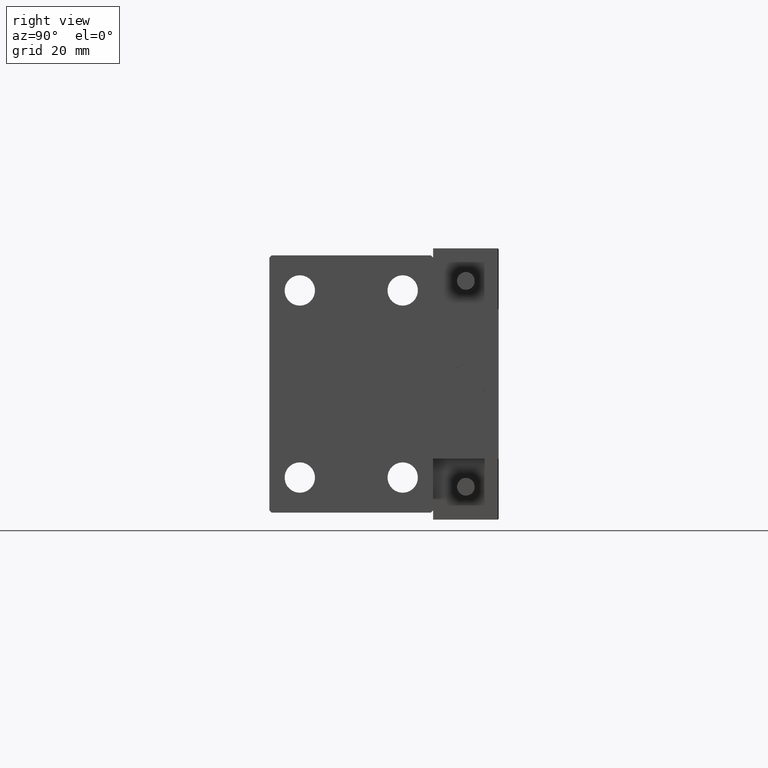
[diagram: clean part render]
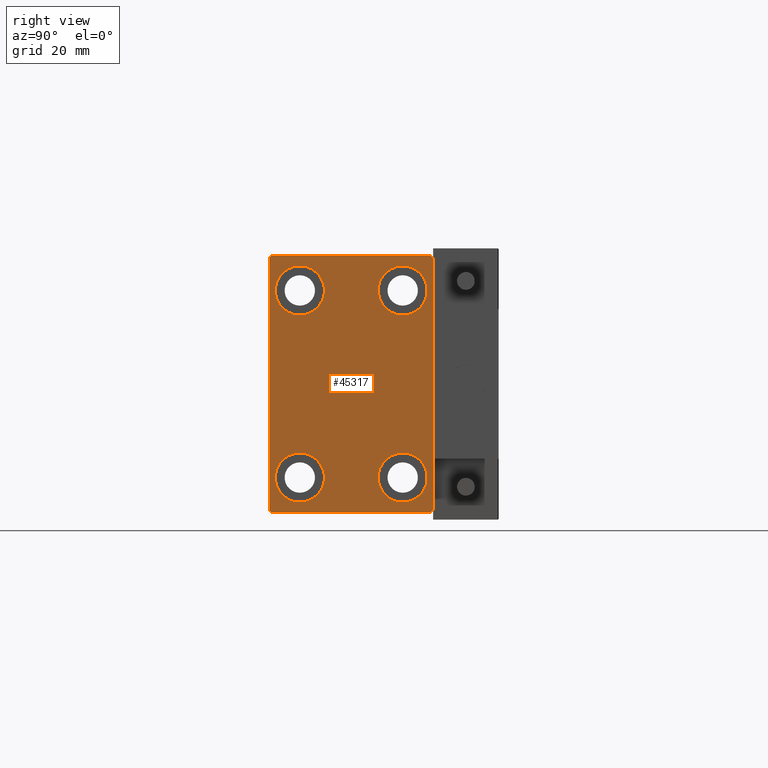
[diagram: same view with one face highlighted and labeled with its STEP entity id]
A machine part, right view. The second image highlights one B-rep face of the part: STEP entity #45317.
In plain terms, the highlighted planar face has unit normal (1, 0, 0).
Its self-contained STEP definition (entity closure, byte-faithful):
#112 = DIRECTION ( 'NONE',  ( -1.000000000000000000, -0.000000000000000000, -0.000000000000000000 ) ) ;
#150 = VERTEX_POINT ( 'NONE', #18050 ) ;
#1364 = CARTESIAN_POINT ( 'NONE',  ( 66.00000000000000000, 17.50000000000000711, -27.50000000000000355 ) ) ;
#2269 = EDGE_CURVE ( 'NONE', #38574, #42901, #26451, .T. ) ;
#2491 = CARTESIAN_POINT ( 'NONE',  ( 66.00000000000000000, 11.00000000000000355, 25.25000000000000000 ) ) ;
#2497 = EDGE_LOOP ( 'NONE', ( #46140, #2888 ) ) ;
#2888 = ORIENTED_EDGE ( 'NONE', *, *, #42793, .T. ) ;
#3155 = VERTEX_POINT ( 'NONE', #3814 ) ;
#3273 = VERTEX_POINT ( 'NONE', #49273 ) ;
#3325 = EDGE_CURVE ( 'NONE', #39649, #12728, #36680, .T. ) ;
#3625 = CARTESIAN_POINT ( 'NONE',  ( 66.00000000000000000, 0.000000000000000000, 0.000000000000000000 ) ) ;
#3814 = CARTESIAN_POINT ( 'NONE',  ( 66.00000000000000000, 17.00000000000001421, 27.50000000000000355 ) ) ;
#3883 = FACE_BOUND ( 'NONE', #30884, .T. ) ;
#5592 = DIRECTION ( 'NONE',  ( 0.000000000000000000, 0.000000000000000000, 1.000000000000000000 ) ) ;
#5760 = VERTEX_POINT ( 'NONE', #15296 ) ;
#5991 = EDGE_CURVE ( 'NONE', #20919, #16400, #20608, .T. ) ;
#6282 = AXIS2_PLACEMENT_3D ( 'NONE', #39024, #27718, #38278 ) ;
#6651 = VERTEX_POINT ( 'NONE', #21504 ) ;
#7688 = AXIS2_PLACEMENT_3D ( 'NONE', #27623, #112, #26622 ) ;
#7896 = AXIS2_PLACEMENT_3D ( 'NONE', #29472, #9433, #5592 ) ;
#7996 = DIRECTION ( 'NONE',  ( 1.000000000000000000, 0.000000000000000000, 0.000000000000000000 ) ) ;
#8001 = CARTESIAN_POINT ( 'NONE',  ( 66.00000000000000000, -11.00000000000000355, -25.25000000000000000 ) ) ;
#8032 = CARTESIAN_POINT ( 'NONE',  ( 66.00000000000000000, 17.50000000000000711, -26.99999999999998934 ) ) ;
#8577 = DIRECTION ( 'NONE',  ( 0.000000000000000000, -1.261617073437677752E-16, 1.000000000000000000 ) ) ;
#9433 = DIRECTION ( 'NONE',  ( -1.000000000000000000, -0.000000000000000000, -0.000000000000000000 ) ) ;
#10563 = VECTOR ( 'NONE', #33244, 1000.000000000000000 ) ;
#10834 = FACE_BOUND ( 'NONE', #14056, .T. ) ;
#11067 = ORIENTED_EDGE ( 'NONE', *, *, #44257, .T. ) ;
#11279 = ORIENTED_EDGE ( 'NONE', *, *, #25213, .T. ) ;
#11375 = DIRECTION ( 'NONE',  ( -1.000000000000000000, -0.000000000000000000, -0.000000000000000000 ) ) ;
#11998 = LINE ( 'NONE', #35633, #18428 ) ;
#12728 = VERTEX_POINT ( 'NONE', #42841 ) ;
#13719 = AXIS2_PLACEMENT_3D ( 'NONE', #35628, #43107, #34866 ) ;
#13969 = CARTESIAN_POINT ( 'NONE',  ( 66.00000000000000000, 11.00000000000000355, -20.00000000000000000 ) ) ;
#14056 = EDGE_LOOP ( 'NONE', ( #39855, #15547 ) ) ;
#14177 = ORIENTED_EDGE ( 'NONE', *, *, #36625, .T. ) ;
#14281 = CARTESIAN_POINT ( 'NONE',  ( 66.00000000000000000, 11.00000000000000355, -25.25000000000000000 ) ) ;
#14290 = VECTOR ( 'NONE', #19099, 1000.000000000000000 ) ;
#14469 = EDGE_CURVE ( 'NONE', #6651, #3273, #19444, .T. ) ;
#15140 = ORIENTED_EDGE ( 'NONE', *, *, #46545, .T. ) ;
#15249 = VECTOR ( 'NONE', #48548, 1000.000000000000000 ) ;
#15296 = CARTESIAN_POINT ( 'NONE',  ( 66.00000000000000000, -17.00000000000000000, 27.49999999999999645 ) ) ;
#15300 = VECTOR ( 'NONE', #16620, 1000.000000000000114 ) ;
#15547 = ORIENTED_EDGE ( 'NONE', *, *, #5991, .T. ) ;
#15814 = CIRCLE ( 'NONE', #36357, 5.250000000000000888 ) ;
#16400 = VERTEX_POINT ( 'NONE', #14281 ) ;
#16620 = DIRECTION ( 'NONE',  ( -0.000000000000000000, 0.7071067811865474617, -0.7071067811865474617 ) ) ;
#16708 = AXIS2_PLACEMENT_3D ( 'NONE', #30521, #46208, #21810 ) ;
#17074 = CARTESIAN_POINT ( 'NONE',  ( 66.00000000000000000, 11.00000000000000355, 20.00000000000000000 ) ) ;
#17155 = CARTESIAN_POINT ( 'NONE',  ( 66.00000000000000000, -17.50000000000000000, 27.49999999999999645 ) ) ;
#17468 = ORIENTED_EDGE ( 'NONE', *, *, #19501, .T. ) ;
#17830 = CARTESIAN_POINT ( 'NONE',  ( 66.00000000000000000, -17.50000000000000000, -27.50000000000000355 ) ) ;
#18050 = CARTESIAN_POINT ( 'NONE',  ( 66.00000000000000000, 11.00000000000000355, 14.75000000000000000 ) ) ;
#18428 = VECTOR ( 'NONE', #42856, 1000.000000000000000 ) ;
#18809 = PLANE ( 'NONE',  #19385 ) ;
#19099 = DIRECTION ( 'NONE',  ( 0.000000000000000000, -1.000000000000000000, -1.982541115402065110E-16 ) ) ;
#19385 = AXIS2_PLACEMENT_3D ( 'NONE', #3625, #7996, #34970 ) ;
#19444 = CIRCLE ( 'NONE', #13719, 5.250000000000000888 ) ;
#19501 = EDGE_CURVE ( 'NONE', #39022, #38574, #40184, .T. ) ;
#20608 = CIRCLE ( 'NONE', #50165, 5.250000000000000888 ) ;
#20897 = LINE ( 'NONE', #1364, #26083 ) ;
#20919 = VERTEX_POINT ( 'NONE', #41124 ) ;
#21187 = DIRECTION ( 'NONE',  ( 0.000000000000000000, 0.000000000000000000, 1.000000000000000000 ) ) ;
#21504 = CARTESIAN_POINT ( 'NONE',  ( 66.00000000000000000, -11.00000000000000355, 14.75000000000000000 ) ) ;
#21768 = VECTOR ( 'NONE', #26202, 1000.000000000000114 ) ;
#21810 = DIRECTION ( 'NONE',  ( 0.000000000000000000, 0.000000000000000000, 1.000000000000000000 ) ) ;
#22083 = EDGE_CURVE ( 'NONE', #45811, #3155, #49560, .T. ) ;
#23484 = LINE ( 'NONE', #42503, #14290 ) ;
#23673 = ORIENTED_EDGE ( 'NONE', *, *, #3325, .T. ) ;
#25213 = EDGE_CURVE ( 'NONE', #42901, #45811, #20897, .T. ) ;
#26083 = VECTOR ( 'NONE', #8577, 1000.000000000000000 ) ;
#26202 = DIRECTION ( 'NONE',  ( -0.000000000000000000, 0.7071067811865474617, 0.7071067811865474617 ) ) ;
#26321 = DIRECTION ( 'NONE',  ( -1.000000000000000000, -0.000000000000000000, -0.000000000000000000 ) ) ;
#26348 = CARTESIAN_POINT ( 'NONE',  ( 66.00000000000000000, 17.50000000000000000, 27.00000000000000355 ) ) ;
#26451 = LINE ( 'NONE', #34644, #21768 ) ;
#26622 = DIRECTION ( 'NONE',  ( 0.000000000000000000, 0.000000000000000000, 1.000000000000000000 ) ) ;
#27623 = CARTESIAN_POINT ( 'NONE',  ( 66.00000000000000000, 11.00000000000000355, -20.00000000000000000 ) ) ;
#27718 = DIRECTION ( 'NONE',  ( -1.000000000000000000, -0.000000000000000000, -0.000000000000000000 ) ) ;
#28388 = DIRECTION ( 'NONE',  ( -1.000000000000000000, -0.000000000000000000, -0.000000000000000000 ) ) ;
#28438 = CIRCLE ( 'NONE', #6282, 5.250000000000000888 ) ;
#28675 = VECTOR ( 'NONE', #33329, 1000.000000000000000 ) ;
#29215 = EDGE_CURVE ( 'NONE', #38997, #34509, #45444, .T. ) ;
#29472 = CARTESIAN_POINT ( 'NONE',  ( 66.00000000000000000, 11.00000000000000355, 20.00000000000000000 ) ) ;
#29550 = EDGE_CURVE ( 'NONE', #16400, #20919, #29847, .T. ) ;
#29586 = ORIENTED_EDGE ( 'NONE', *, *, #2269, .T. ) ;
#29847 = CIRCLE ( 'NONE', #7688, 5.250000000000000888 ) ;
#30021 = CARTESIAN_POINT ( 'NONE',  ( 66.00000000000000000, 22.25000000000024869, 22.24999999999963407 ) ) ;
#30521 = CARTESIAN_POINT ( 'NONE',  ( 66.00000000000000000, -11.00000000000000355, -20.00000000000000000 ) ) ;
#30731 = EDGE_CURVE ( 'NONE', #3155, #5760, #23484, .T. ) ;
#30868 = FACE_BOUND ( 'NONE', #2497, .T. ) ;
#30884 = EDGE_LOOP ( 'NONE', ( #44814, #15140 ) ) ;
#31090 = VERTEX_POINT ( 'NONE', #2491 ) ;
#31628 = AXIS2_PLACEMENT_3D ( 'NONE', #34510, #11375, #50208 ) ;
#31719 = CARTESIAN_POINT ( 'NONE',  ( 66.00000000000000000, -17.50000000000000000, 27.00000000000001066 ) ) ;
#31799 = LINE ( 'NONE', #47470, #15300 ) ;
#33244 = DIRECTION ( 'NONE',  ( 0.000000000000000000, 1.000000000000000000, 0.000000000000000000 ) ) ;
#33329 = DIRECTION ( 'NONE',  ( 0.000000000000000000, 0.000000000000000000, -1.000000000000000000 ) ) ;
#34473 = EDGE_LOOP ( 'NONE', ( #46446, #41360, #23673, #48462, #17468, #29586, #11279, #47232 ) ) ;
#34509 = VERTEX_POINT ( 'NONE', #43802 ) ;
#34510 = CARTESIAN_POINT ( 'NONE',  ( 66.00000000000000000, -11.00000000000000355, 20.00000000000000000 ) ) ;
#34644 = CARTESIAN_POINT ( 'NONE',  ( 66.00000000000000000, 22.24999999999999645, -22.24999999999999645 ) ) ;
#34866 = DIRECTION ( 'NONE',  ( 0.000000000000000000, 0.000000000000000000, 1.000000000000000000 ) ) ;
#34970 = DIRECTION ( 'NONE',  ( 0.000000000000000000, 0.000000000000000000, -1.000000000000000000 ) ) ;
#35628 = CARTESIAN_POINT ( 'NONE',  ( 66.00000000000000000, -11.00000000000000355, 20.00000000000000000 ) ) ;
#35633 = CARTESIAN_POINT ( 'NONE',  ( 66.00000000000000000, -22.24999999999976552, 22.25000000000038014 ) ) ;
#36290 = EDGE_LOOP ( 'NONE', ( #14177, #11067 ) ) ;
#36357 = AXIS2_PLACEMENT_3D ( 'NONE', #17074, #28388, #21187 ) ;
#36625 = EDGE_CURVE ( 'NONE', #150, #31090, #15814, .T. ) ;
#36680 = LINE ( 'NONE', #17155, #28675 ) ;
#38278 = DIRECTION ( 'NONE',  ( 0.000000000000000000, 0.000000000000000000, 1.000000000000000000 ) ) ;
#38574 = VERTEX_POINT ( 'NONE', #46121 ) ;
#38997 = VERTEX_POINT ( 'NONE', #8001 ) ;
#39022 = VERTEX_POINT ( 'NONE', #39587 ) ;
#39024 = CARTESIAN_POINT ( 'NONE',  ( 66.00000000000000000, -11.00000000000000355, -20.00000000000000000 ) ) ;
#39587 = CARTESIAN_POINT ( 'NONE',  ( 66.00000000000000000, -17.00000000000000000, -27.50000000000000355 ) ) ;
#39649 = VERTEX_POINT ( 'NONE', #31719 ) ;
#39855 = ORIENTED_EDGE ( 'NONE', *, *, #29550, .T. ) ;
#40152 = EDGE_CURVE ( 'NONE', #5760, #39649, #11998, .T. ) ;
#40184 = LINE ( 'NONE', #17830, #10563 ) ;
#41124 = CARTESIAN_POINT ( 'NONE',  ( 66.00000000000000000, 11.00000000000000355, -14.75000000000000000 ) ) ;
#41360 = ORIENTED_EDGE ( 'NONE', *, *, #40152, .T. ) ;
#42241 = DIRECTION ( 'NONE',  ( 0.000000000000000000, 0.000000000000000000, 1.000000000000000000 ) ) ;
#42503 = CARTESIAN_POINT ( 'NONE',  ( 66.00000000000000000, 17.50000000000000000, 27.50000000000000355 ) ) ;
#42793 = EDGE_CURVE ( 'NONE', #3273, #6651, #45573, .T. ) ;
#42841 = CARTESIAN_POINT ( 'NONE',  ( 66.00000000000000000, -17.50000000000000000, -27.00000000000000355 ) ) ;
#42856 = DIRECTION ( 'NONE',  ( 0.000000000000000000, -0.7071067811865573427, -0.7071067811865378028 ) ) ;
#42901 = VERTEX_POINT ( 'NONE', #8032 ) ;
#43107 = DIRECTION ( 'NONE',  ( -1.000000000000000000, -0.000000000000000000, -0.000000000000000000 ) ) ;
#43201 = CIRCLE ( 'NONE', #7896, 5.250000000000000888 ) ;
#43208 = FACE_BOUND ( 'NONE', #36290, .T. ) ;
#43802 = CARTESIAN_POINT ( 'NONE',  ( 66.00000000000000000, -11.00000000000000355, -14.75000000000000000 ) ) ;
#44257 = EDGE_CURVE ( 'NONE', #31090, #150, #43201, .T. ) ;
#44814 = ORIENTED_EDGE ( 'NONE', *, *, #29215, .T. ) ;
#45317 = ADVANCED_FACE ( 'NONE', ( #10834, #30868, #43208, #3883, #46299 ), #18809, .T. ) ;
#45444 = CIRCLE ( 'NONE', #16708, 5.250000000000000888 ) ;
#45573 = CIRCLE ( 'NONE', #31628, 5.250000000000000888 ) ;
#45811 = VERTEX_POINT ( 'NONE', #26348 ) ;
#46121 = CARTESIAN_POINT ( 'NONE',  ( 66.00000000000000000, 16.99999999999999289, -27.50000000000000355 ) ) ;
#46140 = ORIENTED_EDGE ( 'NONE', *, *, #14469, .T. ) ;
#46208 = DIRECTION ( 'NONE',  ( -1.000000000000000000, -0.000000000000000000, -0.000000000000000000 ) ) ;
#46299 = FACE_OUTER_BOUND ( 'NONE', #34473, .T. ) ;
#46446 = ORIENTED_EDGE ( 'NONE', *, *, #30731, .T. ) ;
#46545 = EDGE_CURVE ( 'NONE', #34509, #38997, #28438, .T. ) ;
#47232 = ORIENTED_EDGE ( 'NONE', *, *, #22083, .T. ) ;
#47470 = CARTESIAN_POINT ( 'NONE',  ( 66.00000000000000000, -22.25000000000000355, -22.25000000000000355 ) ) ;
#48462 = ORIENTED_EDGE ( 'NONE', *, *, #49453, .T. ) ;
#48548 = DIRECTION ( 'NONE',  ( -0.000000000000000000, -0.7071067811865378028, 0.7071067811865573427 ) ) ;
#49273 = CARTESIAN_POINT ( 'NONE',  ( 66.00000000000000000, -11.00000000000000355, 25.25000000000000000 ) ) ;
#49453 = EDGE_CURVE ( 'NONE', #12728, #39022, #31799, .T. ) ;
#49560 = LINE ( 'NONE', #30021, #15249 ) ;
#50165 = AXIS2_PLACEMENT_3D ( 'NONE', #13969, #26321, #42241 ) ;
#50208 = DIRECTION ( 'NONE',  ( 0.000000000000000000, 0.000000000000000000, 1.000000000000000000 ) ) ;